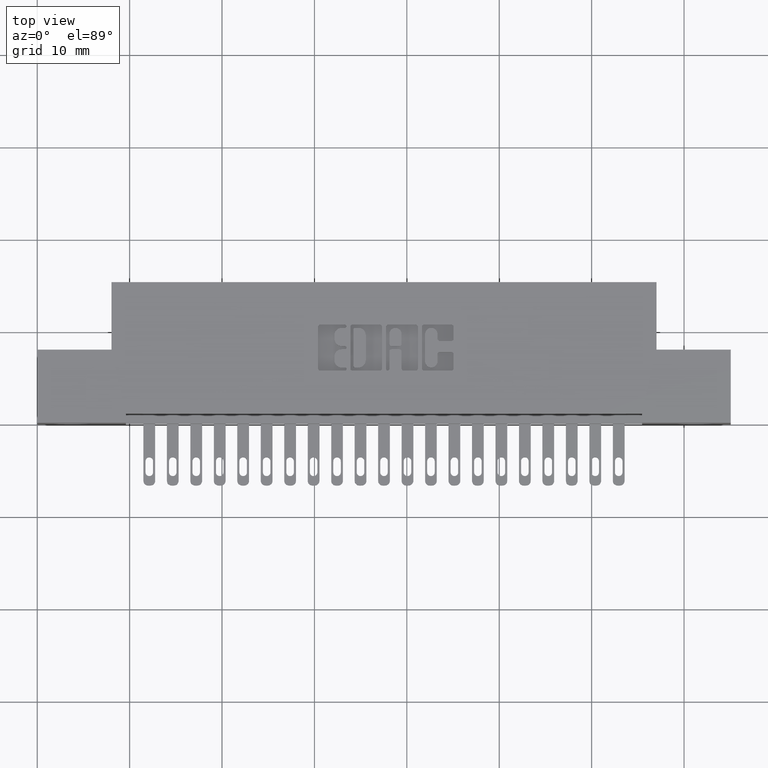
[diagram: clean part render]
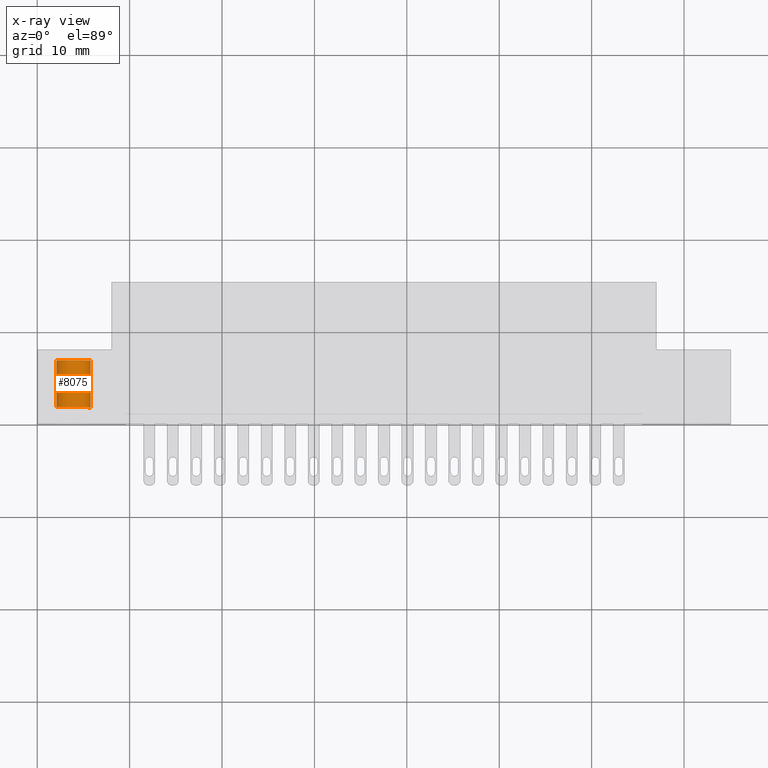
[diagram: x-ray — body ghosted, one internal face saturated and labeled with its STEP entity id]
A machine part, top view, then the same camera in x-ray: the body is ghosted and one INTERNAL B-rep face — a face not visible from any outside direction — is saturated and labeled: STEP entity #8075.
In plain terms, the highlighted cylindrical surface (edge-blend (fillet) strip) has radius 1.9685 mm, axis along (0, 1, 0).
Its self-contained STEP definition (entity closure, byte-faithful):
#270 = AXIS2_PLACEMENT_3D ( 'NONE', #775, #2107, #13944 ) ;
#775 = CARTESIAN_POINT ( 'NONE',  ( 2.731847993664263200E-016, 0.2400000000000000500, 0.0000000000000000000 ) ) ;
#1127 = CIRCLE ( 'NONE', #11399, 0.07749999999999999900 ) ;
#1144 = AXIS2_PLACEMENT_3D ( 'NONE', #11831, #15796, #15690 ) ;
#1195 = ORIENTED_EDGE ( 'NONE', *, *, #4183, .F. ) ;
#1272 = VERTEX_POINT ( 'NONE', #5568 ) ;
#1360 = DIRECTION ( 'NONE',  ( -1.110223024625155600E-016, 0.0000000000000000000, 1.000000000000000000 ) ) ;
#2107 = DIRECTION ( 'NONE',  ( 8.952246189382937400E-016, -1.000000000000000000, 6.073435839552846500E-017 ) ) ;
#2502 = CARTESIAN_POINT ( 'NONE',  ( 2.740715836189733100E-016, 0.2400000000000000500, 0.07749999999999999900 ) ) ;
#2935 = EDGE_CURVE ( 'NONE', #3731, #13361, #15118, .T. ) ;
#3679 = ORIENTED_EDGE ( 'NONE', *, *, #4740, .T. ) ;
#3731 = VERTEX_POINT ( 'NONE', #5054 ) ;
#4183 = EDGE_CURVE ( 'NONE', #3731, #4574, #1127, .T. ) ;
#4574 = VERTEX_POINT ( 'NONE', #12987 ) ;
#4740 = EDGE_CURVE ( 'NONE', #13361, #1272, #13827, .T. ) ;
#5054 = CARTESIAN_POINT ( 'NONE',  ( 3.635940455128027000E-016, 0.2400000000000000500, 0.07749999999999999900 ) ) ;
#5568 = CARTESIAN_POINT ( 'NONE',  ( 3.713114897011006900E-016, 0.03999999999999997300, -0.07749999999999999900 ) ) ;
#5974 = ORIENTED_EDGE ( 'NONE', *, *, #10657, .F. ) ;
#6368 = EDGE_LOOP ( 'NONE', ( #1195, #11588, #3679, #5974 ) ) ;
#6510 = DIRECTION ( 'NONE',  ( 8.952246189382937400E-016, -1.000000000000000000, 6.073435839552846500E-017 ) ) ;
#6832 = VECTOR ( 'NONE', #6510, 39.37007874015748100 ) ;
#7431 = LINE ( 'NONE', #15402, #6832 ) ;
#8075 = ADVANCED_FACE ( 'NONE', ( #14170 ), #13570, .T. ) ;
#8940 = CARTESIAN_POINT ( 'NONE',  ( 2.731847993664263200E-016, 0.2400000000000000500, 0.0000000000000000000 ) ) ;
#9199 = CARTESIAN_POINT ( 'NONE',  ( 3.635940455128027000E-016, 0.03999999999999999400, 0.07749999999999999900 ) ) ;
#10254 = DIRECTION ( 'NONE',  ( 8.952246189382937400E-016, -1.000000000000000000, 6.073435839552846500E-017 ) ) ;
#10657 = EDGE_CURVE ( 'NONE', #4574, #1272, #7431, .T. ) ;
#11399 = AXIS2_PLACEMENT_3D ( 'NONE', #8940, #16609, #1360 ) ;
#11588 = ORIENTED_EDGE ( 'NONE', *, *, #2935, .T. ) ;
#11831 = CARTESIAN_POINT ( 'NONE',  ( 0.0000000000000000000, 0.03999999999999998000, 0.0000000000000000000 ) ) ;
#12987 = CARTESIAN_POINT ( 'NONE',  ( 3.713114897011006900E-016, 0.2400000000000000500, -0.07749999999999999900 ) ) ;
#13111 = VECTOR ( 'NONE', #10254, 39.37007874015748100 ) ;
#13361 = VERTEX_POINT ( 'NONE', #9199 ) ;
#13570 = CYLINDRICAL_SURFACE ( 'NONE', #270, 0.07749999999999999900 ) ;
#13827 = CIRCLE ( 'NONE', #1144, 0.07749999999999999900 ) ;
#13944 = DIRECTION ( 'NONE',  ( 1.110223024625155600E-016, 0.0000000000000000000, -1.000000000000000000 ) ) ;
#14170 = FACE_OUTER_BOUND ( 'NONE', #6368, .T. ) ;
#15118 = LINE ( 'NONE', #2502, #13111 ) ;
#15402 = CARTESIAN_POINT ( 'NONE',  ( 2.817890278072713000E-016, 0.2400000000000000500, -0.07749999999999999900 ) ) ;
#15690 = DIRECTION ( 'NONE',  ( -1.110223024625156500E-016, -1.101551610348493300E-016, 1.000000000000000000 ) ) ;
#15796 = DIRECTION ( 'NONE',  ( -8.952246189382937400E-016, 1.000000000000000000, -6.073435839552846500E-017 ) ) ;
#16609 = DIRECTION ( 'NONE',  ( -8.952246189382937400E-016, 1.000000000000000000, -6.073435839552846500E-017 ) ) ;